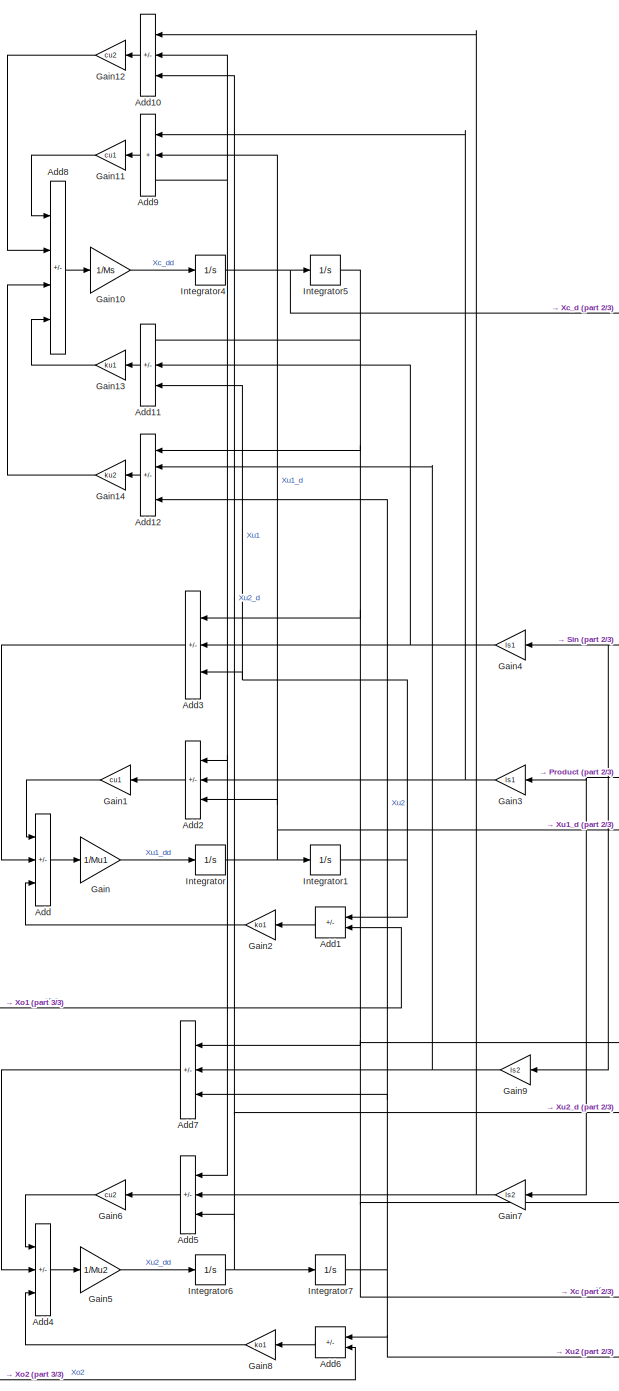
[diagram: root canvas - part 1/3, center side, full height]
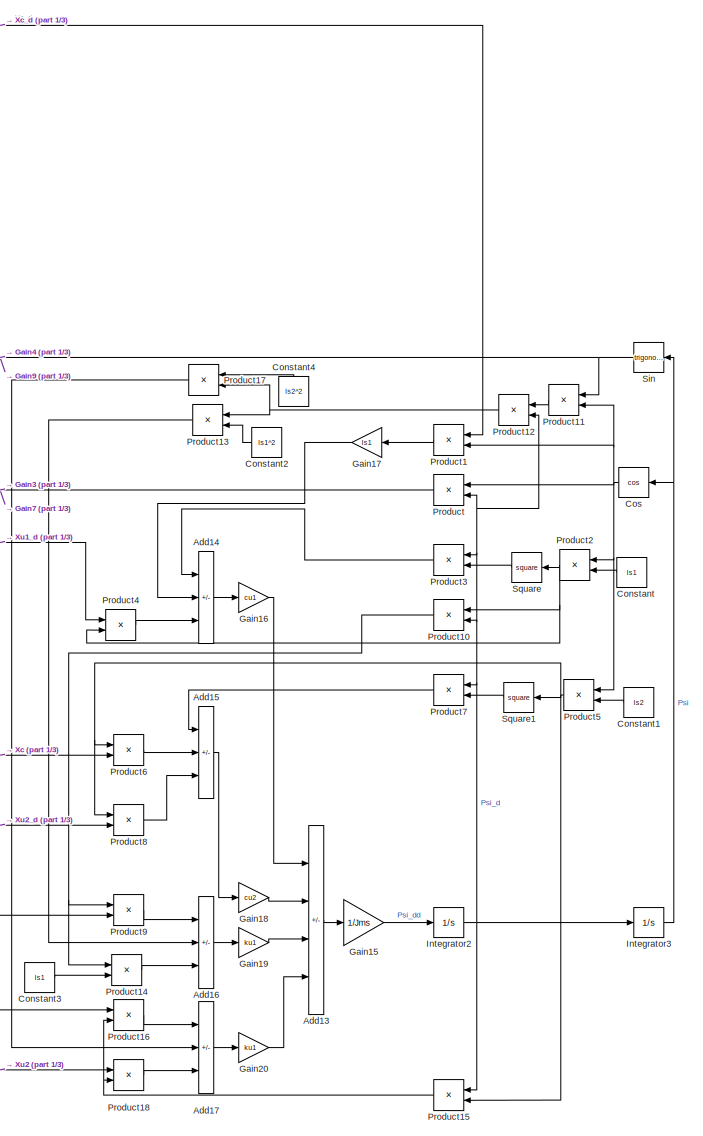
[diagram: root canvas - part 2/3, right side, full height]
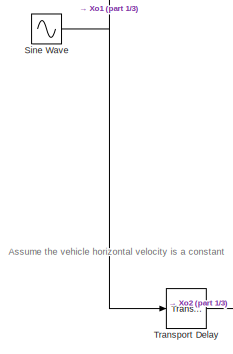
[diagram: root canvas - part 3/3, bottom left region]
MODEL slx_9b931d7b5320
KIND model
CONFIG AbsTol = auto
CONFIG EnableMultiTasking = off
CONFIG FixedStep = auto
CONFIG MaxStep = auto
CONFIG MinStep = auto
CONFIG RelTol = 1e-3
CONFIG SampleTimeConstraint = Unconstrained
CONFIG SolverName = VariableStepAuto
CONFIG StartTime = 0.0
CONFIG StopTime = 10.0
BLOCK [Sum] Add
  IconShape = rectangular
  Inputs = ---
  Ports = [3, 1]
BLOCK [Sum] Add1
  IconShape = rectangular
  Inputs = +-
  Ports = [2, 1]
BLOCK [Sum] Add10
  IconShape = rectangular
  Inputs = ++-
  Ports = [3, 1]
BLOCK [Sum] Add11
  IconShape = rectangular
  Inputs = +--
  Ports = [3, 1]
BLOCK [Sum] Add12
  IconShape = rectangular
  Inputs = +++-
  Ports = [4, 1]
BLOCK [Sum] Add13
  IconShape = rectangular
  Inputs = ----
  Ports = [4, 1]
BLOCK [Sum] Add14
  IconShape = rectangular
  Inputs = +-+
  Ports = [3, 1]
BLOCK [Sum] Add15
  IconShape = rectangular
  Inputs = ++-
  Ports = [3, 1]
BLOCK [Sum] Add16
  IconShape = rectangular
  Inputs = -++
  Ports = [3, 1]
BLOCK [Sum] Add17
  IconShape = rectangular
  Inputs = -+-
  Ports = [3, 1]
BLOCK [Sum] Add2
  IconShape = rectangular
  Inputs = -++
  NameLocation = top
  Ports = [3, 1]
BLOCK [Sum] Add3
  IconShape = rectangular
  Inputs = -++
  Ports = [3, 1]
BLOCK [Sum] Add4
  IconShape = rectangular
  Inputs = ---
  Ports = [3, 1]
BLOCK [Sum] Add5
  IconShape = rectangular
  Inputs = --+
  NameLocation = top
  Ports = [3, 1]
BLOCK [Sum] Add6
  IconShape = rectangular
  Inputs = +-
  Ports = [2, 1]
BLOCK [Sum] Add7
  IconShape = rectangular
  Inputs = --+
  Ports = [3, 1]
BLOCK [Sum] Add8
  IconShape = rectangular
  Inputs = ----
  Ports = [4, 1]
BLOCK [Sum] Add9
  IconShape = rectangular
  Inputs = +++
  Ports = [3, 1]
BLOCK [Constant] Constant
  NameLocation = top
  Value = ls1
BLOCK [Constant] Constant1
  NameLocation = top
  Value = ls2
BLOCK [Constant] Constant2
  NameLocation = top
  Value = ls1^2
BLOCK [Constant] Constant3
  Value = ls1
BLOCK [Constant] Constant4
  NameLocation = right
  Value = ls2^2
BLOCK [Trigonometry] Cos
  Operator = cos
  Ports = [1, 1]
BLOCK [Gain] Gain
  Gain = 1/Mu1
BLOCK [Gain] Gain1
  Gain = cu1
  NameLocation = top
BLOCK [Gain] Gain10
  Gain = 1/Ms
BLOCK [Gain] Gain11
  Gain = cu1
BLOCK [Gain] Gain12
  Gain = cu2
BLOCK [Gain] Gain13
  Gain = ku1
BLOCK [Gain] Gain14
  Gain = ku2
BLOCK [Gain] Gain15
  Gain = 1/Jms
BLOCK [Gain] Gain16
  Gain = cu1
BLOCK [Gain] Gain17
  Gain = ls1
  NameLocation = top
BLOCK [Gain] Gain18
  Gain = cu2
BLOCK [Gain] Gain19
  Gain = ku1
BLOCK [Gain] Gain2
  Gain = ko1
BLOCK [Gain] Gain20
  Gain = ku1
BLOCK [Gain] Gain3
  Gain = ls1
BLOCK [Gain] Gain4
  Gain = ls1
BLOCK [Gain] Gain5
  Gain = 1/Mu2
BLOCK [Gain] Gain6
  Gain = cu2
  NameLocation = top
BLOCK [Gain] Gain7
  Gain = ls2
BLOCK [Gain] Gain8
  Gain = ko1
BLOCK [Gain] Gain9
  Gain = ls2
  NameLocation = top
BLOCK [Integrator] Integrator
  Ports = [1, 1]
BLOCK [Integrator] Integrator1
  Ports = [1, 1]
BLOCK [Integrator] Integrator2
  Ports = [1, 1]
BLOCK [Integrator] Integrator3
  Ports = [1, 1]
BLOCK [Integrator] Integrator4
  Ports = [1, 1]
BLOCK [Integrator] Integrator5
  Ports = [1, 1]
BLOCK [Integrator] Integrator6
  Ports = [1, 1]
BLOCK [Integrator] Integrator7
  Ports = [1, 1]
BLOCK [Product] Product
  Ports = [2, 1]
BLOCK [Product] Product1
  Ports = [2, 1]
BLOCK [Product] Product10
  Ports = [2, 1]
BLOCK [Product] Product11
  Ports = [2, 1]
BLOCK [Product] Product12
  Ports = [2, 1]
BLOCK [Product] Product13
  NameLocation = top
  Ports = [2, 1]
BLOCK [Product] Product14
  Ports = [2, 1]
BLOCK [Product] Product15
  Ports = [2, 1]
BLOCK [Product] Product16
  Ports = [2, 1]
BLOCK [Product] Product17
  Ports = [2, 1]
BLOCK [Product] Product18
  Ports = [2, 1]
BLOCK [Product] Product2
  NameLocation = top
  Ports = [2, 1]
BLOCK [Product] Product3
  Ports = [2, 1]
BLOCK [Product] Product4
  Ports = [2, 1]
BLOCK [Product] Product5
  NameLocation = top
  Ports = [2, 1]
BLOCK [Product] Product6
  Ports = [2, 1]
BLOCK [Product] Product7
  Ports = [2, 1]
BLOCK [Product] Product8
  Ports = [2, 1]
BLOCK [Product] Product9
  Ports = [2, 1]
BLOCK [Trigonometry] Sin
  Ports = [1, 1]
BLOCK [Sin] Sine Wave
  Ports = [0, 1]
  SampleTime = 0
BLOCK [Math] Square
  NameLocation = top
  Operator = square
  Ports = [1, 1]
BLOCK [Math] Square1
  NameLocation = top
  Operator = square
  Ports = [1, 1]
BLOCK [TransportDelay] Transport Delay
  Ports = [1, 1]
ANNOTATION (root): Assume the vehicle horizontal velocity is a constant
LINE Add10:1 -> Gain12:1
LINE Add11:1 -> Gain13:1
LINE Add12:1 -> Gain14:1
LINE Add13:1 -> Gain15:1
LINE Add14:1 -> Gain16:1
LINE Add15:1 -> Gain18:1
LINE Add16:1 -> Gain19:1
LINE Add17:1 -> Gain20:1
LINE Add1:1 -> Gain2:1
LINE Add2:1 -> Gain1:1
LINE Add3:1 -> Add:2
LINE Add4:1 -> Gain5:1
LINE Add5:1 -> Gain6:1
LINE Add6:1 -> Gain8:1
LINE Add7:1 -> Add4:2
LINE Add8:1 -> Gain10:1
LINE Add9:1 -> Gain11:1
LINE Add:1 -> Gain:1
LINE Constant1:1 -> Product5:2
LINE Constant2:1 -> Product13:2
LINE Constant3:1 -> Product14:2
LINE Constant4:1 -> Product17:1
LINE Constant:1 -> Product2:2
NET Cos:1 -> Product11:2, Product1:2, Product2:1, Product5:1, Product:1
LINE Gain10:1 -> Integrator4:1
LINE Gain11:1 -> Add8:1
LINE Gain12:1 -> Add8:2
LINE Gain13:1 -> Add8:4
LINE Gain14:1 -> Add8:3
LINE Gain15:1 -> Integrator2:1
LINE Gain16:1 -> Add13:1
LINE Gain17:1 -> Add14:2
LINE Gain18:1 -> Add13:2
LINE Gain19:1 -> Add13:3
LINE Gain1:1 -> Add:1
LINE Gain20:1 -> Add13:4
LINE Gain2:1 -> Add:3
NET Gain3:1 -> Add2:2, Add9:1
NET Gain4:1 -> Add11:2, Add3:2
LINE Gain5:1 -> Integrator6:1
LINE Gain6:1 -> Add4:1
NET Gain7:1 -> Add10:1, Add5:2
LINE Gain8:1 -> Add4:3
NET Gain9:1 -> Add12:2, Add7:2
LINE Gain:1 -> Integrator:1
NET Integrator1:1 -> Add11:3, Add1:1, Add3:3
NET Integrator2:1 -> Integrator3:1, Product10:2, Product12:2, Product15:1, Product3:1, Product7:1, Product:2
NET Integrator3:1 -> Cos:1, Sin:1
NET Integrator4:1 -> Add10:2, Add2:1, Add5:1, Add9:3, Integrator5:1, Product1:1
NET Integrator5:1 -> Add11:1, Add12:1, Add3:1, Add7:1, Product16:1, Product6:2, Product9:2
NET Integrator6:1 -> Add10:3, Add5:3, Integrator7:1, Product8:2
NET Integrator7:1 -> Add12:4, Add6:1, Add7:3, Product18:1
NET Integrator:1 -> Add2:3, Add9:2, Integrator1:1, Product4:1
NET Product10:1 -> Product14:1, Product9:1
LINE Product11:1 -> Product12:1
NET Product12:1 -> Product13:1, Product17:2
LINE Product13:1 -> Add16:2
LINE Product14:1 -> Add16:3
NET Product15:1 -> Product16:2, Product18:2
LINE Product16:1 -> Add17:1
LINE Product17:1 -> Add17:2
LINE Product18:1 -> Add17:3
LINE Product1:1 -> Gain17:1
NET Product2:1 -> Product10:1, Product4:2, Square:1
LINE Product3:1 -> Add14:1
LINE Product4:1 -> Add14:3
NET Product5:1 -> Product15:2, Product6:1, Product8:1, Square1:1
LINE Product6:1 -> Add15:2
LINE Product7:1 -> Add15:1
LINE Product8:1 -> Add15:3
LINE Product9:1 -> Add16:1
NET Product:1 -> Gain3:1, Gain7:1
NET Sin:1 -> Gain4:1, Gain9:1, Product11:1
NET Sine Wave:1 -> Add1:2, Transport Delay:1
LINE Square1:1 -> Product7:2
LINE Square:1 -> Product3:2
LINE Transport Delay:1 -> Add6:2
note: NET lines group one-source signal fan-out (src -> all destinations, sorted); 1:1 wires keep LINE
